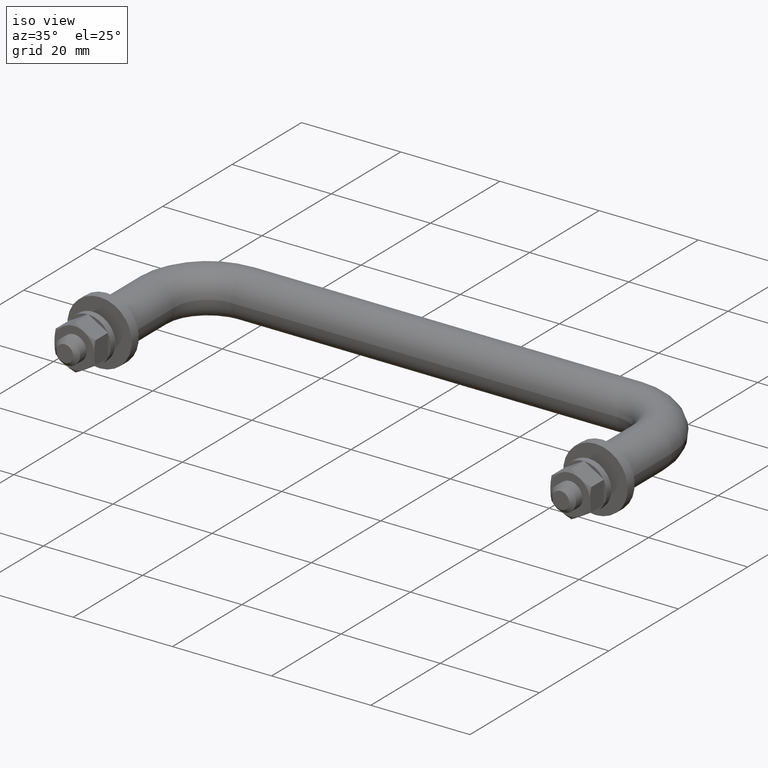
[diagram: clean part render]
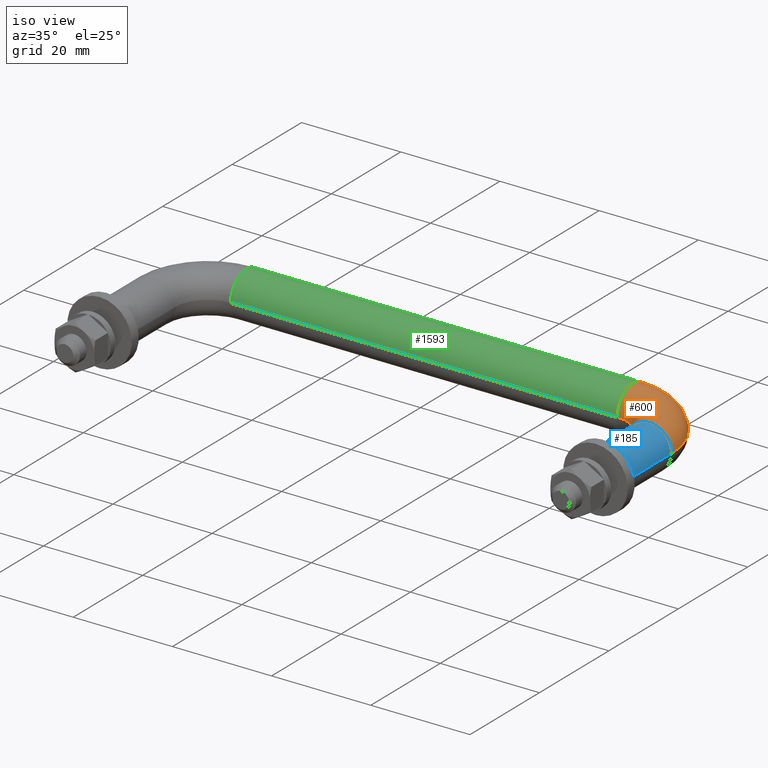
[diagram: same view with three faces highlighted in distinct colors, each labeled with its STEP entity id]
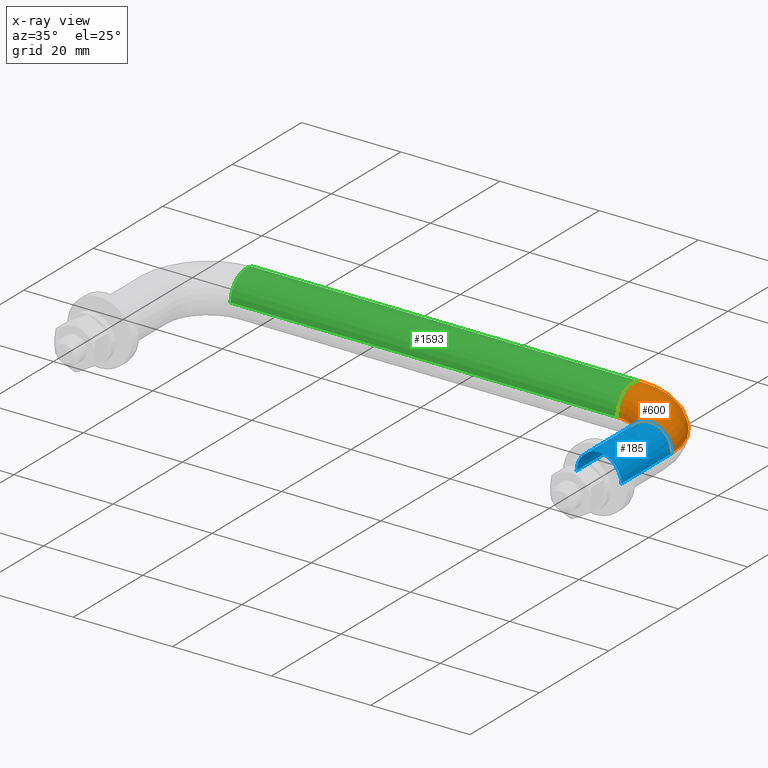
[diagram: x-ray of the same camera — body ghosted, the three highlighted faces saturated]
A machine part, iso view with three faces highlighted in distinct colors.
The next image is the same camera in x-ray (body ghosted, the three faces saturated) — at least one of them is partly hidden behind the body in this view.
Their STEP definitions:

[orange] entity #600 — the highlighted toroidal blend (fillet) surface has major radius 11 mm and minor (blend) radius 4.5 mm.
#20 = ORIENTED_EDGE ( 'NONE', *, *, #1423, .F. ) ;
#54 = DIRECTION ( 'NONE',  ( -1.431847554560484000E-015, -1.000000000000000000, 0.0000000000000000000 ) ) ;
#154 = CARTESIAN_POINT ( 'NONE',  ( 39.00000000000002100, 25.50000000000001100, 0.0000000000000000000 ) ) ;
#182 = DIRECTION ( 'NONE',  ( -0.0000000000000000000, -0.0000000000000000000, -1.000000000000000000 ) ) ;
#241 = AXIS2_PLACEMENT_3D ( 'NONE', #154, #646, #1479 ) ;
#260 = CIRCLE ( 'NONE', #241, 4.499999999999998200 ) ;
#287 = CARTESIAN_POINT ( 'NONE',  ( 39.00000000000002100, 21.00000000000001400, 5.510910596163087600E-016 ) ) ;
#471 = DIRECTION ( 'NONE',  ( -1.000000000000000000, 0.0000000000000000000, 0.0000000000000000000 ) ) ;
#476 = CIRCLE ( 'NONE', #1705, 4.499999999999998200 ) ;
#482 = CIRCLE ( 'NONE', #1108, 15.49999999999999600 ) ;
#592 = AXIS2_PLACEMENT_3D ( 'NONE', #1608, #1466, #471 ) ;
#600 = ADVANCED_FACE ( 'NONE', ( #984 ), #1682, .T. ) ;
#601 = CARTESIAN_POINT ( 'NONE',  ( 45.50000000000002100, 14.49999999999999800, 5.510910596163087600E-016 ) ) ;
#607 = DIRECTION ( 'NONE',  ( -1.000000000000000000, 0.0000000000000000000, 0.0000000000000000000 ) ) ;
#626 = DIRECTION ( 'NONE',  ( -0.0000000000000000000, -0.0000000000000000000, -1.000000000000000000 ) ) ;
#646 = DIRECTION ( 'NONE',  ( 1.000000000000000000, -3.828568698926949400E-016, 0.0000000000000000000 ) ) ;
#694 = ORIENTED_EDGE ( 'NONE', *, *, #1513, .T. ) ;
#725 = DIRECTION ( 'NONE',  ( 0.0000000000000000000, 0.0000000000000000000, 1.000000000000000000 ) ) ;
#842 = VERTEX_POINT ( 'NONE', #601 ) ;
#872 = EDGE_CURVE ( 'NONE', #1521, #842, #1745, .T. ) ;
#984 = FACE_OUTER_BOUND ( 'NONE', #1511, .T. ) ;
#1011 = CARTESIAN_POINT ( 'NONE',  ( 39.00000000000001400, 14.50000000000001200, 5.510910596163086600E-016 ) ) ;
#1021 = CARTESIAN_POINT ( 'NONE',  ( 39.00000000000001400, 14.50000000000001200, 0.0000000000000000000 ) ) ;
#1108 = AXIS2_PLACEMENT_3D ( 'NONE', #1021, #626, #607 ) ;
#1150 = DIRECTION ( 'NONE',  ( -1.000000000000000000, 0.0000000000000000000, 0.0000000000000000000 ) ) ;
#1248 = EDGE_CURVE ( 'NONE', #1394, #842, #476, .T. ) ;
#1364 = VERTEX_POINT ( 'NONE', #1453 ) ;
#1394 = VERTEX_POINT ( 'NONE', #1432 ) ;
#1423 = EDGE_CURVE ( 'NONE', #1364, #1394, #482, .T. ) ;
#1430 = CARTESIAN_POINT ( 'NONE',  ( 50.00000000000001400, 14.49999999999999300, 0.0000000000000000000 ) ) ;
#1432 = CARTESIAN_POINT ( 'NONE',  ( 54.50000000000001400, 14.49999999999998600, 0.0000000000000000000 ) ) ;
#1451 = ORIENTED_EDGE ( 'NONE', *, *, #1248, .F. ) ;
#1453 = CARTESIAN_POINT ( 'NONE',  ( 39.00000000000002100, 30.00000000000001100, 0.0000000000000000000 ) ) ;
#1466 = DIRECTION ( 'NONE',  ( -0.0000000000000000000, -0.0000000000000000000, -1.000000000000000000 ) ) ;
#1479 = DIRECTION ( 'NONE',  ( 0.0000000000000000000, 0.0000000000000000000, 1.000000000000000000 ) ) ;
#1511 = EDGE_LOOP ( 'NONE', ( #20, #694, #1552, #1451 ) ) ;
#1513 = EDGE_CURVE ( 'NONE', #1364, #1521, #260, .T. ) ;
#1521 = VERTEX_POINT ( 'NONE', #287 ) ;
#1552 = ORIENTED_EDGE ( 'NONE', *, *, #872, .T. ) ;
#1608 = CARTESIAN_POINT ( 'NONE',  ( 39.00000000000001400, 14.50000000000001200, 0.0000000000000000000 ) ) ;
#1682 = TOROIDAL_SURFACE ( 'NONE', #592, 11.00000000000000000, 4.499999999999998200 ) ;
#1705 = AXIS2_PLACEMENT_3D ( 'NONE', #1430, #54, #725 ) ;
#1745 = CIRCLE ( 'NONE', #1779, 6.499999999999999100 ) ;
#1779 = AXIS2_PLACEMENT_3D ( 'NONE', #1011, #182, #1150 ) ;

[blue] entity #185 — the highlighted cylindrical surface (edge-blend (fillet) strip) has radius 4.5 mm, axis along (-0, -1, 0).
#29 = EDGE_CURVE ( 'NONE', #1394, #440, #1736, .T. ) ;
#54 = DIRECTION ( 'NONE',  ( -1.431847554560484000E-015, -1.000000000000000000, 0.0000000000000000000 ) ) ;
#118 = AXIS2_PLACEMENT_3D ( 'NONE', #541, #1516, #672 ) ;
#171 = DIRECTION ( 'NONE',  ( 1.000000000000000000, -1.541976423090496000E-015, 0.0000000000000000000 ) ) ;
#180 = EDGE_CURVE ( 'NONE', #842, #1189, #1274, .T. ) ;
#185 = ADVANCED_FACE ( 'NONE', ( #1609 ), #1556, .T. ) ;
#301 = CARTESIAN_POINT ( 'NONE',  ( 45.50000000000002100, 14.49999999999999800, 5.510910596163086600E-016 ) ) ;
#440 = VERTEX_POINT ( 'NONE', #1236 ) ;
#476 = CIRCLE ( 'NONE', #1705, 4.499999999999998200 ) ;
#541 = CARTESIAN_POINT ( 'NONE',  ( 49.99999999999999300, -2.255140518769849200E-014, 0.0000000000000000000 ) ) ;
#601 = CARTESIAN_POINT ( 'NONE',  ( 45.50000000000002100, 14.49999999999999800, 5.510910596163087600E-016 ) ) ;
#655 = VECTOR ( 'NONE', #860, 1000.000000000000000 ) ;
#672 = DIRECTION ( 'NONE',  ( 0.0000000000000000000, 0.0000000000000000000, 1.000000000000000000 ) ) ;
#689 = EDGE_LOOP ( 'NONE', ( #1597, #1042, #1503, #1002 ) ) ;
#718 = CARTESIAN_POINT ( 'NONE',  ( 50.00000000000001400, 14.49999999999999300, 0.0000000000000000000 ) ) ;
#725 = DIRECTION ( 'NONE',  ( 0.0000000000000000000, 0.0000000000000000000, 1.000000000000000000 ) ) ;
#749 = CARTESIAN_POINT ( 'NONE',  ( 54.50000000000001400, 14.49999999999998600, 0.0000000000000000000 ) ) ;
#825 = CIRCLE ( 'NONE', #118, 4.499999999999998200 ) ;
#842 = VERTEX_POINT ( 'NONE', #601 ) ;
#860 = DIRECTION ( 'NONE',  ( -1.435633221498045900E-015, -1.000000000000000000, 0.0000000000000000000 ) ) ;
#905 = VECTOR ( 'NONE', #1279, 1000.000000000000000 ) ;
#920 = AXIS2_PLACEMENT_3D ( 'NONE', #718, #998, #171 ) ;
#998 = DIRECTION ( 'NONE',  ( -1.435633221498045900E-015, -1.000000000000000000, 0.0000000000000000000 ) ) ;
#1002 = ORIENTED_EDGE ( 'NONE', *, *, #29, .F. ) ;
#1042 = ORIENTED_EDGE ( 'NONE', *, *, #180, .T. ) ;
#1189 = VERTEX_POINT ( 'NONE', #1586 ) ;
#1236 = CARTESIAN_POINT ( 'NONE',  ( 54.49999999999999300, -2.899471918322066400E-014, 0.0000000000000000000 ) ) ;
#1248 = EDGE_CURVE ( 'NONE', #1394, #842, #476, .T. ) ;
#1274 = LINE ( 'NONE', #301, #905 ) ;
#1279 = DIRECTION ( 'NONE',  ( -1.435633221498045900E-015, -1.000000000000000000, 0.0000000000000000000 ) ) ;
#1394 = VERTEX_POINT ( 'NONE', #1432 ) ;
#1430 = CARTESIAN_POINT ( 'NONE',  ( 50.00000000000001400, 14.49999999999999300, 0.0000000000000000000 ) ) ;
#1432 = CARTESIAN_POINT ( 'NONE',  ( 54.50000000000001400, 14.49999999999998600, 0.0000000000000000000 ) ) ;
#1503 = ORIENTED_EDGE ( 'NONE', *, *, #1743, .F. ) ;
#1516 = DIRECTION ( 'NONE',  ( -1.431847554560484000E-015, -1.000000000000000000, 0.0000000000000000000 ) ) ;
#1556 = CYLINDRICAL_SURFACE ( 'NONE', #920, 4.499999999999997300 ) ;
#1586 = CARTESIAN_POINT ( 'NONE',  ( 45.50000000000000000, -1.610809119217631700E-014, 5.510910596163105300E-016 ) ) ;
#1597 = ORIENTED_EDGE ( 'NONE', *, *, #1248, .T. ) ;
#1609 = FACE_OUTER_BOUND ( 'NONE', #689, .T. ) ;
#1705 = AXIS2_PLACEMENT_3D ( 'NONE', #1430, #54, #725 ) ;
#1736 = LINE ( 'NONE', #749, #655 ) ;
#1743 = EDGE_CURVE ( 'NONE', #440, #1189, #825, .T. ) ;

[green] entity #1593 — the highlighted cylindrical surface (edge-blend (fillet) strip) has radius 4.5 mm, axis along (1, 0, 0).
#2 = DIRECTION ( 'NONE',  ( 0.0000000000000000000, 1.000000000000000000, 0.0000000000000000000 ) ) ;
#50 = FACE_OUTER_BOUND ( 'NONE', #88, .T. ) ;
#78 = ORIENTED_EDGE ( 'NONE', *, *, #1386, .T. ) ;
#88 = EDGE_LOOP ( 'NONE', ( #921, #78, #656, #1352 ) ) ;
#99 = EDGE_CURVE ( 'NONE', #903, #1364, #618, .T. ) ;
#154 = CARTESIAN_POINT ( 'NONE',  ( 39.00000000000002100, 25.50000000000001100, 0.0000000000000000000 ) ) ;
#241 = AXIS2_PLACEMENT_3D ( 'NONE', #154, #646, #1479 ) ;
#260 = CIRCLE ( 'NONE', #241, 4.499999999999998200 ) ;
#287 = CARTESIAN_POINT ( 'NONE',  ( 39.00000000000002100, 21.00000000000001400, 5.510910596163087600E-016 ) ) ;
#506 = AXIS2_PLACEMENT_3D ( 'NONE', #1237, #549, #2 ) ;
#549 = DIRECTION ( 'NONE',  ( 1.000000000000000000, 1.334402673828312800E-016, 0.0000000000000000000 ) ) ;
#593 = CARTESIAN_POINT ( 'NONE',  ( -38.99999999999999300, 25.50000000000000400, 0.0000000000000000000 ) ) ;
#618 = LINE ( 'NONE', #1094, #945 ) ;
#642 = EDGE_CURVE ( 'NONE', #903, #666, #941, .T. ) ;
#646 = DIRECTION ( 'NONE',  ( 1.000000000000000000, -3.828568698926949400E-016, 0.0000000000000000000 ) ) ;
#656 = ORIENTED_EDGE ( 'NONE', *, *, #1513, .F. ) ;
#666 = VERTEX_POINT ( 'NONE', #1152 ) ;
#736 = DIRECTION ( 'NONE',  ( 0.0000000000000000000, 0.0000000000000000000, 1.000000000000000000 ) ) ;
#880 = AXIS2_PLACEMENT_3D ( 'NONE', #593, #1575, #736 ) ;
#903 = VERTEX_POINT ( 'NONE', #1290 ) ;
#921 = ORIENTED_EDGE ( 'NONE', *, *, #642, .T. ) ;
#938 = VECTOR ( 'NONE', #1712, 1000.000000000000000 ) ;
#941 = CIRCLE ( 'NONE', #880, 4.499999999999998200 ) ;
#945 = VECTOR ( 'NONE', #954, 1000.000000000000000 ) ;
#954 = DIRECTION ( 'NONE',  ( 1.000000000000000000, 1.334402673828312800E-016, 0.0000000000000000000 ) ) ;
#980 = LINE ( 'NONE', #1300, #938 ) ;
#1094 = CARTESIAN_POINT ( 'NONE',  ( -38.99999999999999300, 30.00000000000000000, 0.0000000000000000000 ) ) ;
#1152 = CARTESIAN_POINT ( 'NONE',  ( -38.99999999999999300, 21.00000000000000400, 5.510910596163096500E-016 ) ) ;
#1237 = CARTESIAN_POINT ( 'NONE',  ( -38.99999999999999300, 25.50000000000000400, 0.0000000000000000000 ) ) ;
#1284 = CYLINDRICAL_SURFACE ( 'NONE', #506, 4.499999999999997300 ) ;
#1290 = CARTESIAN_POINT ( 'NONE',  ( -38.99999999999999300, 30.00000000000000000, 0.0000000000000000000 ) ) ;
#1300 = CARTESIAN_POINT ( 'NONE',  ( -38.99999999999999300, 21.00000000000000400, 5.510910596163086600E-016 ) ) ;
#1352 = ORIENTED_EDGE ( 'NONE', *, *, #99, .F. ) ;
#1364 = VERTEX_POINT ( 'NONE', #1453 ) ;
#1386 = EDGE_CURVE ( 'NONE', #666, #1521, #980, .T. ) ;
#1453 = CARTESIAN_POINT ( 'NONE',  ( 39.00000000000002100, 30.00000000000001100, 0.0000000000000000000 ) ) ;
#1479 = DIRECTION ( 'NONE',  ( 0.0000000000000000000, 0.0000000000000000000, 1.000000000000000000 ) ) ;
#1513 = EDGE_CURVE ( 'NONE', #1364, #1521, #260, .T. ) ;
#1521 = VERTEX_POINT ( 'NONE', #287 ) ;
#1575 = DIRECTION ( 'NONE',  ( 1.000000000000000000, -3.828568698926949400E-016, 0.0000000000000000000 ) ) ;
#1593 = ADVANCED_FACE ( 'NONE', ( #50 ), #1284, .T. ) ;
#1712 = DIRECTION ( 'NONE',  ( 1.000000000000000000, 1.334402673828312800E-016, 0.0000000000000000000 ) ) ;